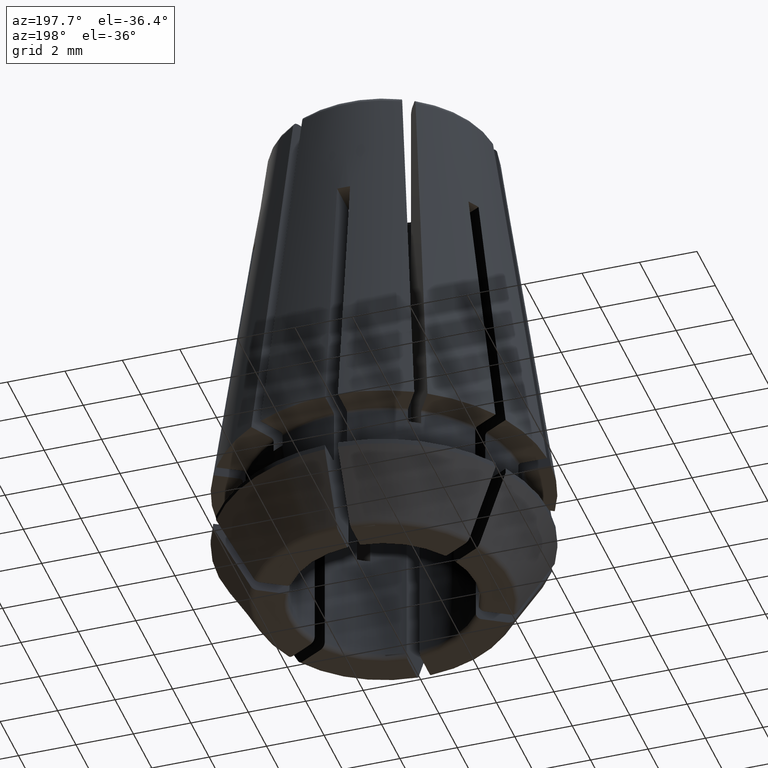
[diagram: clean part render]
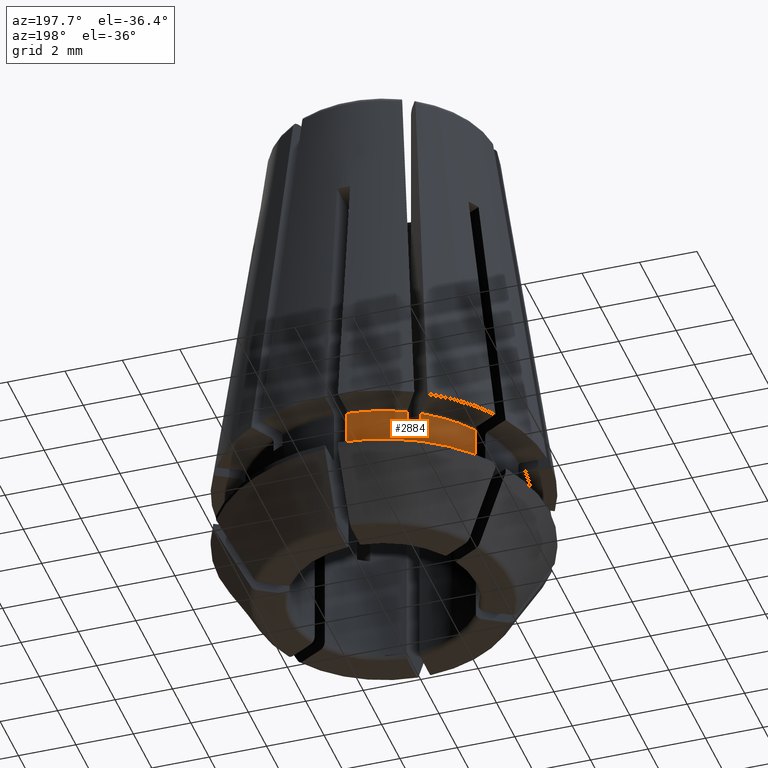
[diagram: same view with one face highlighted and labeled with its STEP entity id]
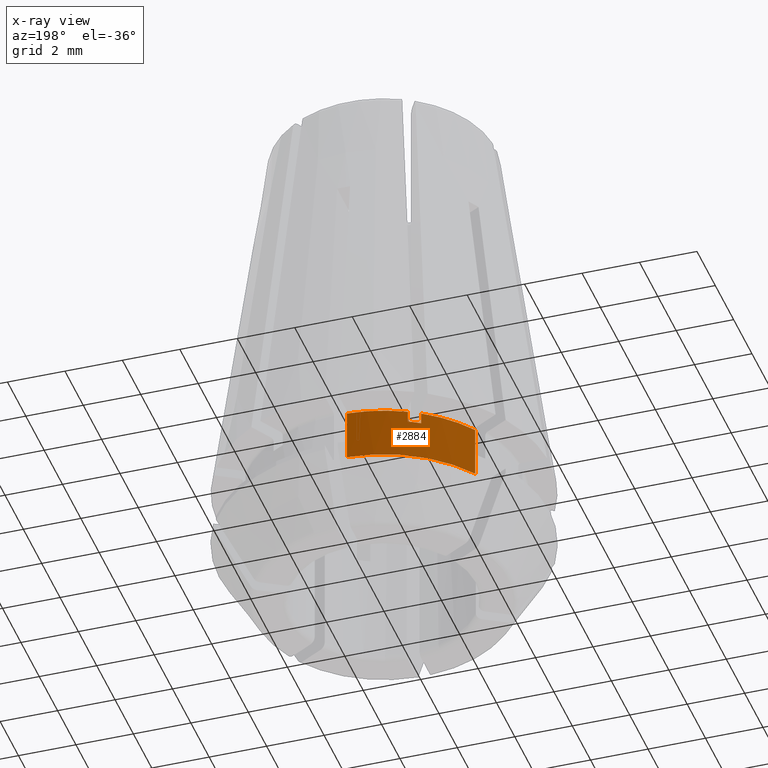
[diagram: x-ray of the same camera — body ghosted, the highlighted face saturated]
A machine part, auxiliary view. The second image highlights one B-rep face of the part: STEP entity #2884.
The next image is the same camera in x-ray: the body ghosted, the highlighted face saturated — about 0% of this face is hidden behind the body in this view.
In plain terms, the highlighted cylindrical surface (partial cylindrical patch) has radius 4.75 mm, axis along (0, 0, -1).
Its self-contained STEP definition (entity closure, byte-faithful):
#47=CYLINDRICAL_SURFACE('',#3172,4.75);
#122=LINE('',#4631,#290);
#184=LINE('',#5205,#352);
#185=LINE('',#5209,#353);
#186=LINE('',#5210,#354);
#290=VECTOR('',#3525,1000.);
#352=VECTOR('',#3821,1000.);
#353=VECTOR('',#3824,1000.);
#354=VECTOR('',#3825,1000.);
#504=CIRCLE('',#3007,4.75);
#509=CIRCLE('',#3014,4.75);
#531=CIRCLE('',#3060,4.75);
#589=CIRCLE('',#3173,4.75);
#1099=ORIENTED_EDGE('',*,*,#1881,.T.);
#1100=ORIENTED_EDGE('',*,*,#1882,.F.);
#1101=ORIENTED_EDGE('',*,*,#1883,.F.);
#1102=ORIENTED_EDGE('',*,*,#1611,.T.);
#1103=ORIENTED_EDGE('',*,*,#1884,.T.);
#1104=ORIENTED_EDGE('',*,*,#1620,.F.);
#1105=ORIENTED_EDGE('',*,*,#1706,.F.);
#1106=ORIENTED_EDGE('',*,*,#1713,.T.);
#1611=EDGE_CURVE('',#2063,#2061,#504,.T.);
#1620=EDGE_CURVE('',#2071,#2072,#509,.T.);
#1706=EDGE_CURVE('',#2138,#2071,#122,.T.);
#1713=EDGE_CURVE('',#2138,#2142,#531,.T.);
#1881=EDGE_CURVE('',#2142,#2246,#184,.T.);
#1882=EDGE_CURVE('',#2247,#2246,#589,.T.);
#1883=EDGE_CURVE('',#2063,#2247,#185,.T.);
#1884=EDGE_CURVE('',#2061,#2072,#186,.T.);
#2061=VERTEX_POINT('',#4327);
#2063=VERTEX_POINT('',#4330);
#2071=VERTEX_POINT('',#4360);
#2072=VERTEX_POINT('',#4362);
#2138=VERTEX_POINT('',#4630);
#2142=VERTEX_POINT('',#4650);
#2246=VERTEX_POINT('',#5206);
#2247=VERTEX_POINT('',#5208);
#2526=EDGE_LOOP('',(#1099,#1100,#1101,#1102,#1103,#1104,#1105,#1106));
#2684=FACE_BOUND('',#2526,.T.);
#2884=ADVANCED_FACE('',(#2684),#47,.T.);
#3007=AXIS2_PLACEMENT_3D('',#4329,#3384,#3385);
#3014=AXIS2_PLACEMENT_3D('',#4361,#3398,#3399);
#3060=AXIS2_PLACEMENT_3D('',#4651,#3537,#3538);
#3172=AXIS2_PLACEMENT_3D('',#5204,#3819,#3820);
#3173=AXIS2_PLACEMENT_3D('',#5207,#3822,#3823);
#3384=DIRECTION('',(0.,0.,1.));
#3385=DIRECTION('',(1.,0.,0.));
#3398=DIRECTION('',(0.,0.,1.));
#3399=DIRECTION('',(1.,0.,0.));
#3525=DIRECTION('',(0.,0.,1.));
#3537=DIRECTION('',(0.,0.,-1.));
#3538=DIRECTION('',(-1.,0.,0.));
#3819=DIRECTION('',(0.,0.,-1.));
#3820=DIRECTION('',(1.,0.,0.));
#3821=DIRECTION('',(0.,0.,1.));
#3822=DIRECTION('',(0.,0.,1.));
#3823=DIRECTION('',(1.,0.,0.));
#3824=DIRECTION('',(0.,0.,1.));
#3825=DIRECTION('',(0.,0.,1.));
#4327=CARTESIAN_POINT('',(-3.99650307252258,2.56718974587341,-1.9));
#4329=CARTESIAN_POINT('',(0.,0.,-1.9));
#4330=CARTESIAN_POINT('',(-0.225,4.74466806004382,-1.9));
#4360=CARTESIAN_POINT('',(-2.56718974587329,3.99650307252239,-9.99999999999524E-02));
#4361=CARTESIAN_POINT('',(0.,0.,-0.100000000000003));
#4362=CARTESIAN_POINT('',(-3.99650307252258,2.56718974587341,-0.100000000000003));
#4630=CARTESIAN_POINT('',(-2.56718974587341,3.99650307252258,-0.5));
#4631=CARTESIAN_POINT('',(-2.56718974587341,3.99650307252258,60.));
#4650=CARTESIAN_POINT('',(-2.17747831417041,4.22150307252258,-0.5));
#4651=CARTESIAN_POINT('',(0.,0.,-0.5));
#5204=CARTESIAN_POINT('',(0.,0.,60.));
#5205=CARTESIAN_POINT('',(-2.17747831417041,4.22150307252258,60.));
#5206=CARTESIAN_POINT('',(-2.17747831417029,4.22150307252239,-9.99999999999524E-02));
#5207=CARTESIAN_POINT('',(0.,0.,-0.100000000000003));
#5208=CARTESIAN_POINT('',(-0.225,4.7446680600436,-9.99999999999529E-02));
#5209=CARTESIAN_POINT('',(-0.225,4.74466806004382,60.));
#5210=CARTESIAN_POINT('',(-3.99650307252258,2.56718974587341,60.));